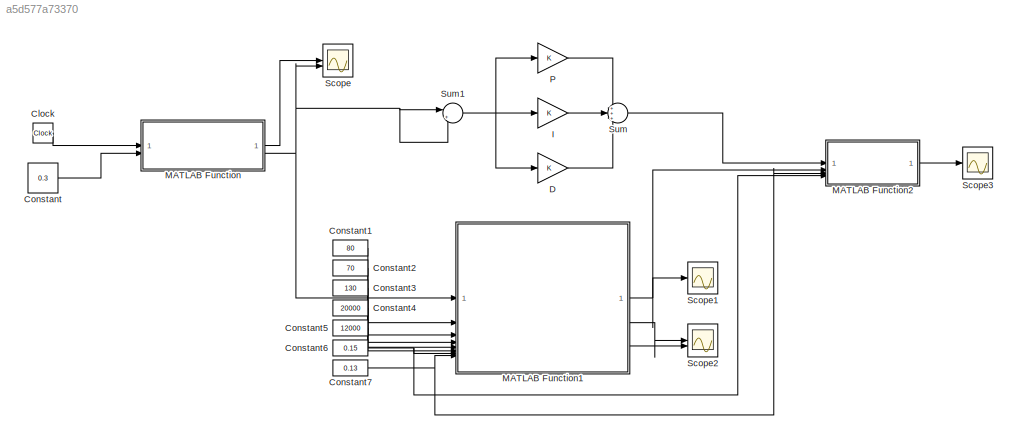
MODEL slx_a5d577a73370
KIND model
CONFIG AbsTol = auto
CONFIG EnableMultiTasking = off
CONFIG FixedStep = 0.01
CONFIG MaxStep = auto
CONFIG MinStep = auto
CONFIG RelTol = 1e-3
CONFIG SampleTimeConstraint = Unconstrained
CONFIG SolverName = FixedStepAuto
CONFIG StartTime = 0.0
CONFIG StopTime = 40
BLOCK [Clock] Clock
BLOCK [Constant] Constant
  Value = 0.3
BLOCK [Constant] Constant1
  Value = 80
BLOCK [Constant] Constant2
  Value = 70
BLOCK [Constant] Constant3
  Value = 130
BLOCK [Constant] Constant4
  Value = 20000
BLOCK [Constant] Constant5
  Value = 12000
BLOCK [Constant] Constant6
  Value = 0.15
BLOCK [Constant] Constant7
  Value = 0.13
BLOCK [Gain] D
BLOCK [Gain] I
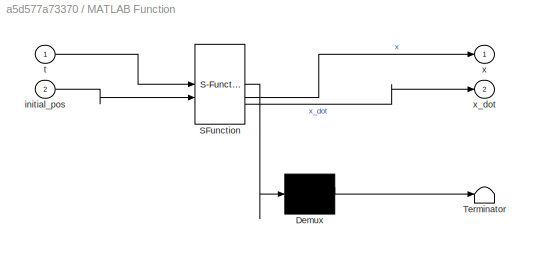
BLOCK [SubSystem] MATLAB Function
  ErrorFcn = Stateflow.Translate.translate
  PermitHierarchicalResolution = ExplicitOnly
  SFBlockType = MATLAB Function
  TreatAsAtomicUnit = on
BLOCK [Demux] MATLAB Function/ Demux 
  Outputs = 1
BLOCK [S-Function] MATLAB Function/ SFunction 
  EnableBusSupport = on
  FunctionName = sf_sfun
  PortCounts = [2 3]
  SFcnIsStateOwnerBlock = off
  SFunctionDeploymentMode = off
  Tag = Stateflow S-Function 2
BLOCK [Terminator] MATLAB Function/ Terminator 
BLOCK [Inport] MATLAB Function/initial_pos
  Port = 2
BLOCK [Inport] MATLAB Function/t
BLOCK [Outport] MATLAB Function/x
BLOCK [Outport] MATLAB Function/x_dot
  Port = 2
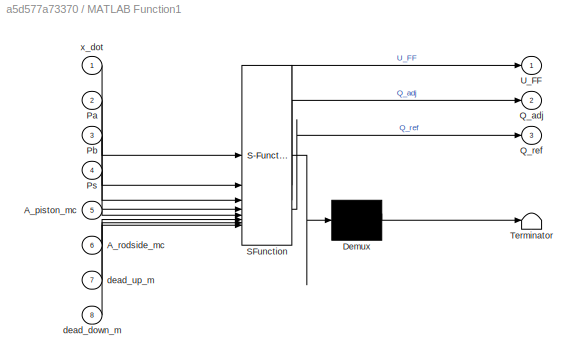
BLOCK [SubSystem] MATLAB Function1
  ErrorFcn = Stateflow.Translate.translate
  PermitHierarchicalResolution = ExplicitOnly
  SFBlockType = MATLAB Function
  TreatAsAtomicUnit = on
BLOCK [Demux] MATLAB Function1/ Demux 
  Outputs = 1
BLOCK [S-Function] MATLAB Function1/ SFunction 
  EnableBusSupport = on
  FunctionName = sf_sfun
  PortCounts = [8 4]
  SFcnIsStateOwnerBlock = off
  SFunctionDeploymentMode = off
  Tag = Stateflow S-Function 1
BLOCK [Terminator] MATLAB Function1/ Terminator 
BLOCK [Inport] MATLAB Function1/A_piston_mc
  Port = 5
BLOCK [Inport] MATLAB Function1/A_rodside_mc
  Port = 6
BLOCK [Inport] MATLAB Function1/Pa
  Port = 2
BLOCK [Inport] MATLAB Function1/Pb
  Port = 3
BLOCK [Inport] MATLAB Function1/Ps
  Port = 4
BLOCK [Outport] MATLAB Function1/Q_adj
  Port = 2
BLOCK [Outport] MATLAB Function1/Q_ref
  Port = 3
BLOCK [Outport] MATLAB Function1/U_FF
BLOCK [Inport] MATLAB Function1/dead_down_m
  Port = 8
BLOCK [Inport] MATLAB Function1/dead_up_m
  Port = 7
BLOCK [Inport] MATLAB Function1/x_dot
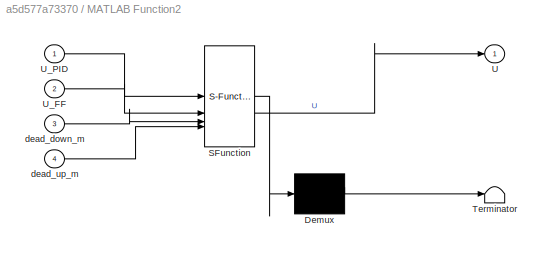
BLOCK [SubSystem] MATLAB Function2
  ErrorFcn = Stateflow.Translate.translate
  PermitHierarchicalResolution = ExplicitOnly
  SFBlockType = MATLAB Function
  TreatAsAtomicUnit = on
BLOCK [Demux] MATLAB Function2/ Demux 
  Outputs = 1
BLOCK [S-Function] MATLAB Function2/ SFunction 
  EnableBusSupport = on
  FunctionName = sf_sfun
  PortCounts = [4 2]
  SFcnIsStateOwnerBlock = off
  SFunctionDeploymentMode = off
  Tag = Stateflow S-Function 3
BLOCK [Terminator] MATLAB Function2/ Terminator 
BLOCK [Outport] MATLAB Function2/U
BLOCK [Inport] MATLAB Function2/U_FF
  Port = 2
BLOCK [Inport] MATLAB Function2/U_PID
BLOCK [Inport] MATLAB Function2/dead_down_m
  Port = 3
BLOCK [Inport] MATLAB Function2/dead_up_m
  Port = 4
BLOCK [Gain] P
BLOCK [Scope] Scope
  Floating = off
  NumInputPorts = 2
  ScopeSpecificationString = Simulink.scopes.TimeScopeBlockCfg('CurrentConfiguration', extmgr.ConfigurationSet(extmgr.Configuration('Core','General UI',true),extmgr.Configuration('Core','Source UI',true),extmgr.Configuration('Sources','WiredSimulink',true),extmgr.Configuration('Visuals','Time Domain',true,'SerializedDisplays',{struct('MinYLimReal','-0.02444','MaxYLimReal','0.06143','YLabelReal','','MinYLimMag','0.00000','MaxY...<+1807ch>
BLOCK [Scope] Scope1
  Floating = off
  NumInputPorts = 1
  ScopeSpecificationString = Simulink.scopes.TimeScopeBlockCfg('CurrentConfiguration', extmgr.ConfigurationSet(extmgr.Configuration('Core','General UI',true),extmgr.Configuration('Core','Source UI',true),extmgr.Configuration('Sources','WiredSimulink',true,'DataLoggingVariableName','ScopeData1'),extmgr.Configuration('Visuals','Time Domain',true,'SerializedDisplays',{struct('MinYLimReal','-0.27962','MaxYLimReal','0.4422','YLabe...<+1481ch>
BLOCK [Scope] Scope2
  Floating = off
  NumInputPorts = 2
  ScopeSpecificationString = Simulink.scopes.TimeScopeBlockCfg('CurrentConfiguration', extmgr.ConfigurationSet(extmgr.Configuration('Core','General UI',true),extmgr.Configuration('Core','Source UI',true),extmgr.Configuration('Sources','WiredSimulink',true,'DataLoggingVariableName','ScopeData2'),extmgr.Configuration('Visuals','Time Domain',true,'SerializedDisplays',{struct('MinYLimReal','-13.9199','MaxYLimReal','36.34558','YLa...<+1851ch>
BLOCK [Scope] Scope3
  Floating = off
  NumInputPorts = 1
  ScopeSpecificationString = Simulink.scopes.TimeScopeBlockCfg('CurrentConfiguration', extmgr.ConfigurationSet(extmgr.Configuration('Core','General UI',true),extmgr.Configuration('Core','Source UI',true),extmgr.Configuration('Sources','WiredSimulink',true,'DataLoggingVariableName','ScopeData3'),extmgr.Configuration('Visuals','Time Domain',true,'SerializedDisplays',{struct('MinYLimReal','-0.12962','MaxYLimReal','0.5922','YLabe...<+1482ch>
BLOCK [Sum] Sum
  Inputs = +++
BLOCK [Sum] Sum1
  Inputs = |+-
LINE Clock:1 -> MATLAB Function:1
LINE Constant1:1 -> MATLAB Function1:2
LINE Constant2:1 -> MATLAB Function1:3
LINE Constant3:1 -> MATLAB Function1:4
LINE Constant4:1 -> MATLAB Function1:5
LINE Constant5:1 -> MATLAB Function1:6
NET Constant6:1 -> MATLAB Function1:7, MATLAB Function2:4
NET Constant7:1 -> MATLAB Function1:8, MATLAB Function2:3
LINE Constant:1 -> MATLAB Function:2
LINE D:1 -> Sum:3
LINE I:1 -> Sum:2
NET MATLAB Function1:1 -> MATLAB Function2:2, Scope1:1
LINE MATLAB Function1:2 -> Scope2:1
LINE MATLAB Function1:3 -> Scope2:2
LINE MATLAB Function2:1 -> Scope3:1
LINE MATLAB Function:1 -> Scope:1
NET MATLAB Function:2 -> MATLAB Function1:1, Scope:2, Sum1:1, Sum1:2
LINE P:1 -> Sum:1
NET Sum1:1 -> D:1, I:1, P:1
LINE Sum:1 -> MATLAB Function2:1
note: NET lines group one-source signal fan-out (src -> all destinations, sorted); 1:1 wires keep LINE
CHART MATLAB Function1 states=1 transitions=1
  STATE_LABEL 'eML_blk_kernel()'
  STATE_LABEL 'SCRIPT:\nfunction [U_FF,Q_adj,Q_ref] = fcn(x_dot, Pa, Pb, Ps, A_piston_mc,A_rodside_mc,dead_up_m,dead_down_m)\n\ndp_0 = 6e5; %Pa\nQ_0 = 30/60000; %m^3/s\n\nif x_dot >= 0\n    dp = (Ps-Pa)*1e5;\n    if dp <=100\n        dp = 100;\n    end\n    Q_ref = A_piston_mc*1e-6 * x_dot;\n    Q_adj = Q_ref * sqrt(dp_0/dp);\n    U_FF = Q_adj/Q_0;\n    U_FF = U_FF*(1-dead_up_m);\nelseif x_dot < 0\n    dp = (Ps-Pb)*1e5;\n    if ...<+261ch>'
CHART MATLAB Function states=1 transitions=1
  STATE_LABEL 'eML_blk_kernel()'
  STATE_LABEL 'SCRIPT:\nfunction [x, x_dot] = fcn(t,initial_pos)\n\namplitude = 0.1;\nmedian = initial_pos+amplitude;\nfrekvens = 0.05;\n\nx = median - amplitude * cos(2*pi*frekvens*t);\nx_dot = amplitude*2*pi*frekvens*sin(2*pi*frekvens*t);\n'
CHART MATLAB Function2 states=1 transitions=1
  STATE_LABEL 'eML_blk_kernel()'
  STATE_LABEL 'SCRIPT:\nfunction U = fcn(U_PID,U_FF, dead_down_m, dead_up_m)\nU_adj = U_FF+U_PID;\nif U_PID >= 0\n    U = U_adj+dead_up_m;\nelseif U_PID < 0\n    U = U_adj-dead_down_m;\nelse\n    U=0;\nend \n\n'
CHART  states=0 transitions=0
CHART  states=0 transitions=0
CHART  states=0 transitions=0
